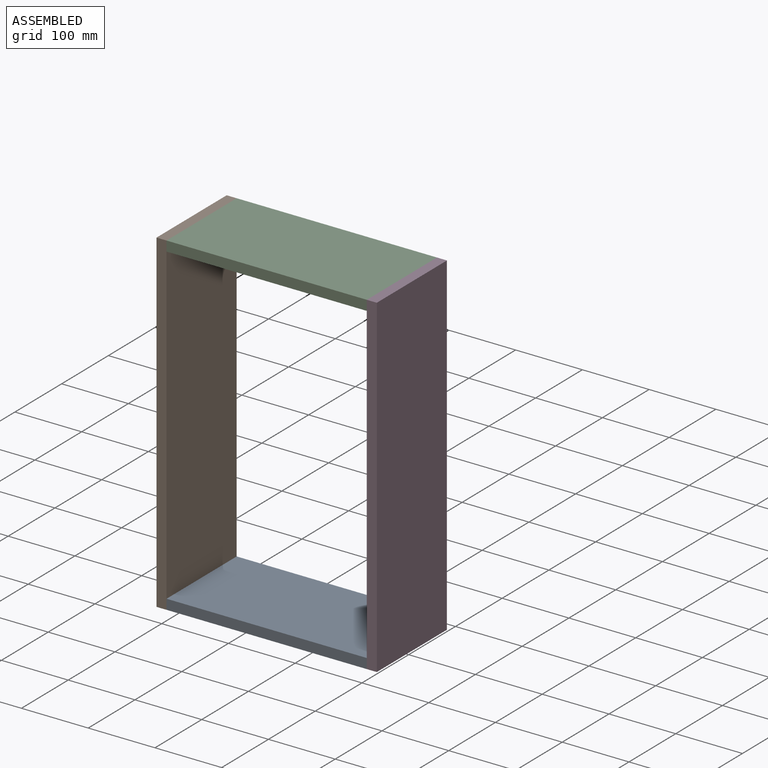
[diagram: assembled view]
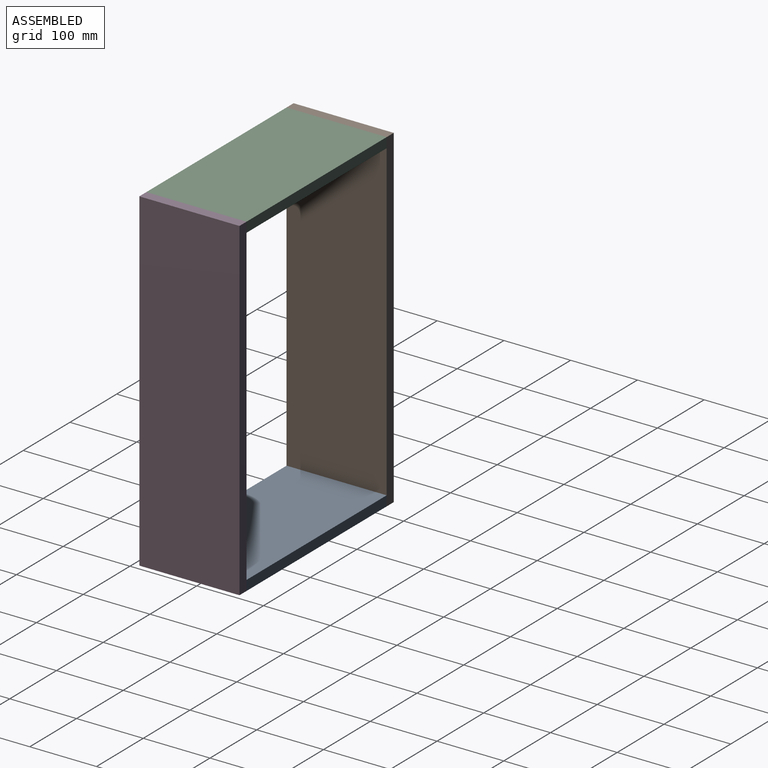
[diagram: assembled view, second angle]
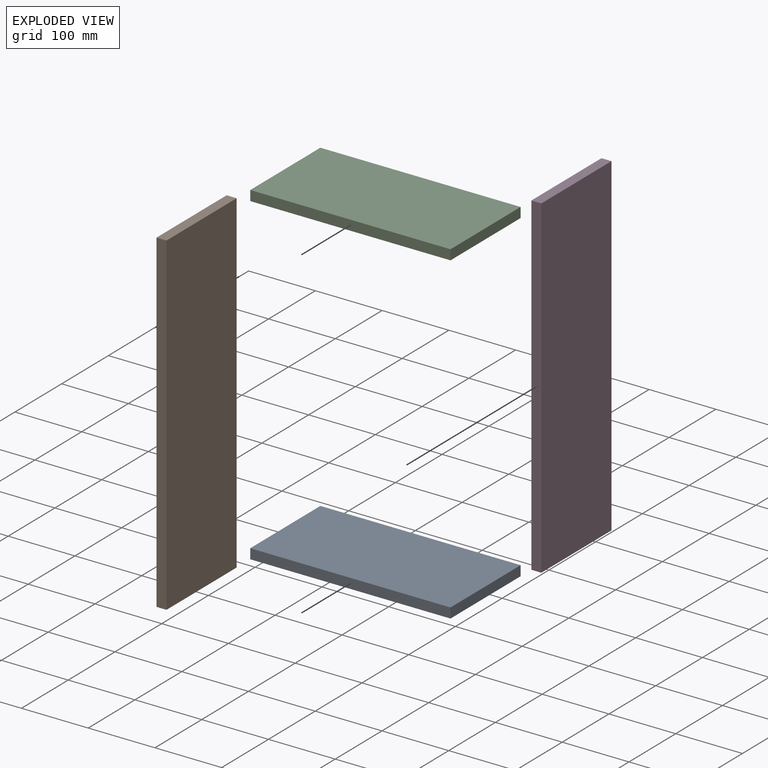
[diagram: exploded view]
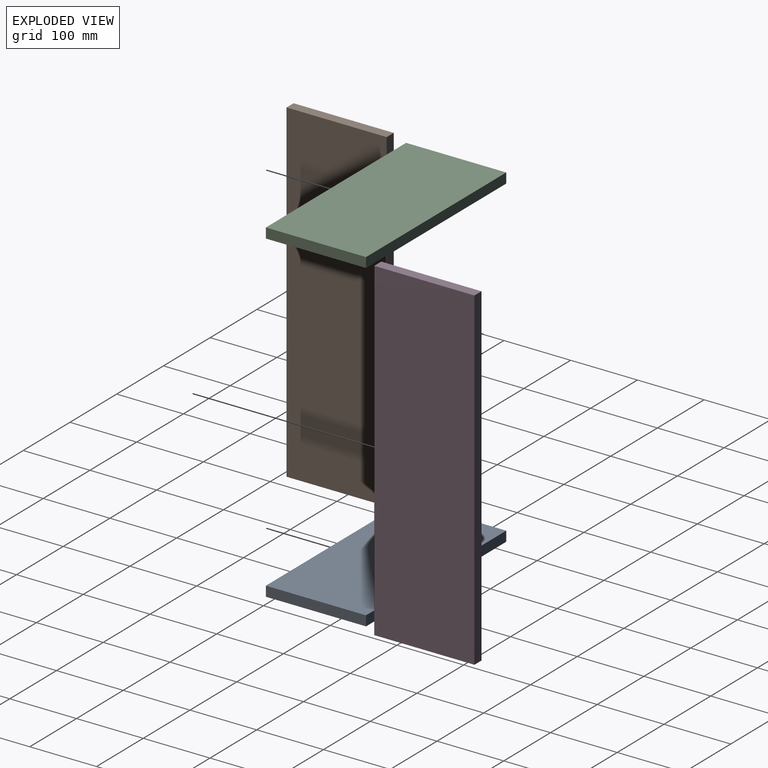
[diagram: exploded view, second angle]
ASSEMBLY  parts=4 mates=7
PART A: 6 faces, bbox 300x15x150 mm
  f0: plane 150x15mm, normal (-1,0,0), area 2250mm2, adj f1,f3,f4,f5
  f1: plane 300x15mm, normal (0,0,-1), area 4500mm2, adj f0,f2,f4,f5
  f2: plane 150x15mm, normal (1,0,0), area 2250mm2, adj f1,f3,f4,f5
  f3: plane 300x15mm, normal (0,0,1), area 4500mm2, adj f0,f2,f4,f5
  f4: plane 300x150mm, normal (0,-1,0), area 45000mm2, adj f0,f1,f2,f3
  f5: plane 300x150mm, normal (0,1,0), area 45000mm2, adj f0,f1,f2,f3
PART B: 6 faces, bbox 500x15x150 mm
  f0: plane 150x15mm, normal (-1,0,0), area 2250mm2, adj f1,f3,f4,f5
  f1: plane 500x15mm, normal (0,0,-1), area 7500mm2, adj f0,f2,f4,f5
  f2: plane 150x15mm, normal (1,0,0), area 2250mm2, adj f1,f3,f4,f5
  f3: plane 500x15mm, normal (0,0,1), area 7500mm2, adj f0,f2,f4,f5
  f4: plane 500x150mm, normal (0,-1,0), area 75000mm2, adj f0,f1,f2,f3
  f5: plane 500x150mm, normal (0,1,0), area 75000mm2, adj f0,f1,f2,f3
PART C: same geometry as A
PART D: same geometry as B
PLACE A rot(axis=(1,0,0),90deg) t=(-106.64,-30.07,-339.54)mm
PLACE B rot(axis=(0.58,0.58,-0.58),120deg) t=(-106.64,-30.07,146.96)mm
PLACE C rot(axis=(-1,0,0),90deg) t=(-106.64,-180.07,130.46)mm
PLACE D rot(axis=(0.58,0.58,-0.58),120deg) t=(208.36,-30.07,146.96)mm
MATE parallel B.f3 <-> A.f3  axis (0,-1,0) through (-106.64,-180.07,-354.54)mm
MATE parallel C.f1 <-> B.f3  axis (0,-1,0) through (-106.64,-180.07,145.46)mm
MATE parallel D.f3 <-> A.f3  axis (0,-1,0) through (193.36,-180.07,-354.54)mm
MATE parallel B.f5 <-> C.f0  axis (1,0,0) through (-106.64,-180.07,145.46)mm
MATE parallel B.f3 <-> A.f3  axis (0,-1,0) through (-106.64,-180.07,-354.54)mm
MATE parallel C.f1 <-> D.f3  axis (0,1,0) through (193.36,-180.07,145.46)mm
MATE parallel B.f5 <-> C.f0  axis (1,0,0) through (-106.64,-180.07,145.46)mm
